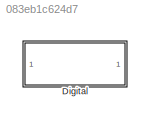
MODEL slx_083eb1c624d7
KIND library
CONFIG AbsTol = auto
CONFIG EnableMultiTasking = off
CONFIG FixedStep = auto
CONFIG MaxStep = auto
CONFIG MinStep = auto
CONFIG RelTol = 1e-3
CONFIG SampleTimeConstraint = Unconstrained
CONFIG Solver = VariableStepAuto
CONFIG SolverName = VariableStepAuto
CONFIG StartTime = 0.0
CONFIG StopTime = 10.0
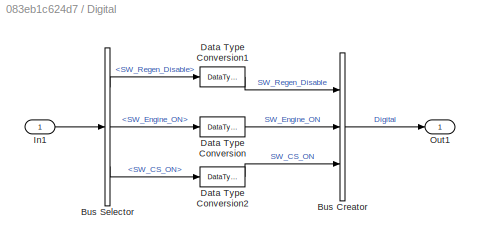
BLOCK [SubSystem] Digital
  Ports = [1, 1]
  RequestExecContextInheritance = off
  Variant = off
BLOCK [BusCreator] Digital/Bus Creator
  DisplayOption = bar
  InheritFromInputs = on
  Inputs = 3
  Ports = [3, 1]
BLOCK [BusSelector] Digital/Bus Selector
  OutputAsBus = off
  OutputSignals = Driver_Signals.SW_Regen_Disable,Driver_Signals.SW_Engine_ON,Driver_Signals.SW_CS_ON
  Ports = [1, 3]
BLOCK [DataTypeConversion] Digital/Data Type Conversion
  RndMeth = Floor
  SaturateOnIntegerOverflow = off
BLOCK [DataTypeConversion] Digital/Data Type Conversion1
  RndMeth = Floor
  SaturateOnIntegerOverflow = off
BLOCK [DataTypeConversion] Digital/Data Type Conversion2
  RndMeth = Floor
  SaturateOnIntegerOverflow = off
BLOCK [Inport] Digital/In1
  IconDisplay = Port number
BLOCK [Outport] Digital/Out1
  IconDisplay = Port number
LINE Digital/Bus Creator:1 -> Digital/Out1:1
LINE Digital/Bus Selector:1 -> Digital/Data Type Conversion1:1
LINE Digital/Bus Selector:2 -> Digital/Data Type Conversion:1
LINE Digital/Bus Selector:3 -> Digital/Data Type Conversion2:1
LINE Digital/Data Type Conversion1:1 -> Digital/Bus Creator:1
LINE Digital/Data Type Conversion2:1 -> Digital/Bus Creator:3
LINE Digital/Data Type Conversion:1 -> Digital/Bus Creator:2
LINE Digital/In1:1 -> Digital/Bus Selector:1
